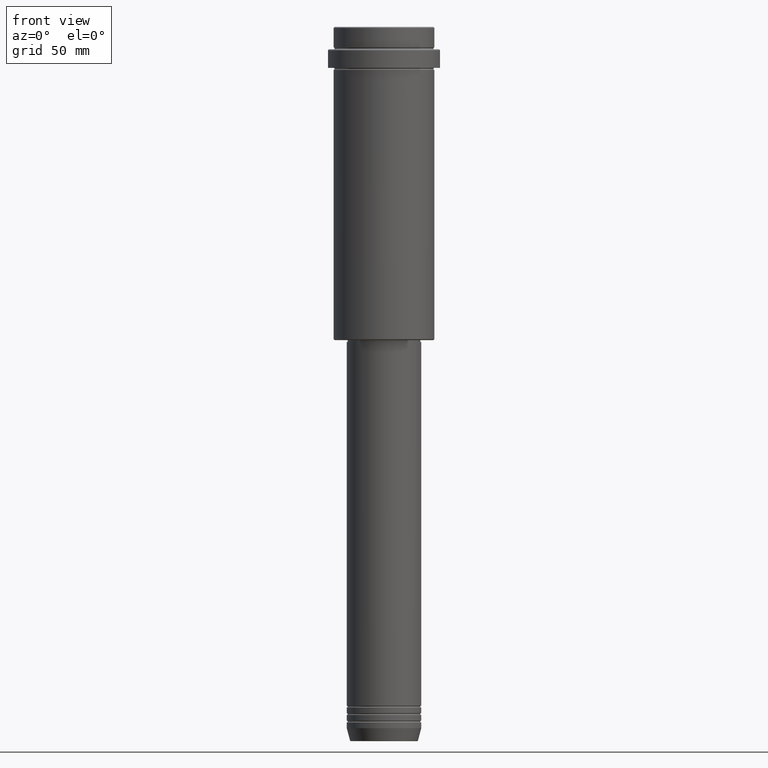
[diagram: clean part render]
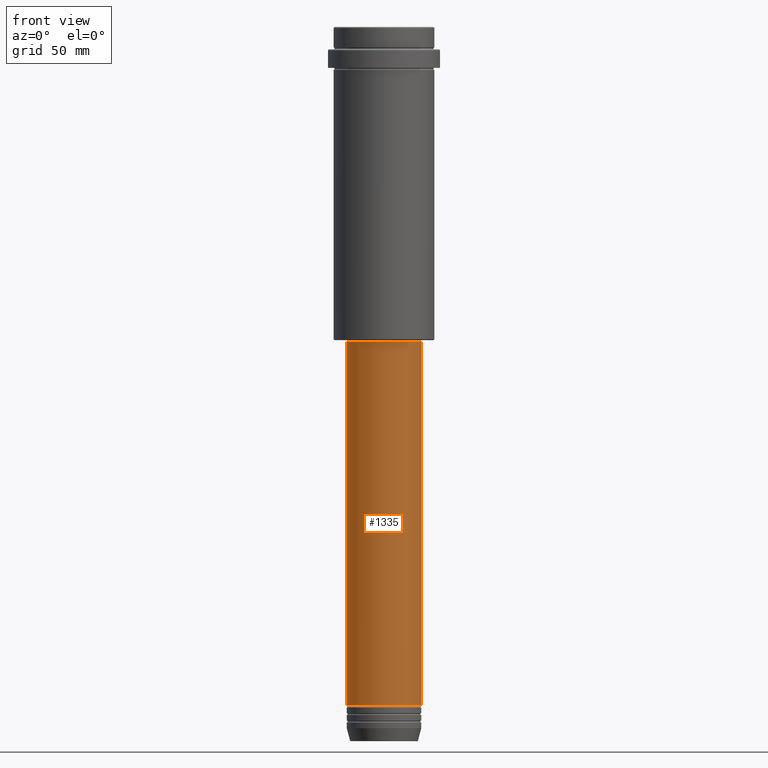
[diagram: same view with one face highlighted and labeled with its STEP entity id]
A machine part, front view. The second image highlights one B-rep face of the part: STEP entity #1335.
In plain terms, the highlighted cylindrical surface (partial cylindrical patch) has radius 20 mm, axis along (-0, -0, 1).
Its self-contained STEP definition (entity closure, byte-faithful):
#45 = EDGE_CURVE ( 'NONE', #1310, #1345, #1164, .T. ) ;
#114 = FACE_OUTER_BOUND ( 'NONE', #933, .T. ) ;
#122 = VERTEX_POINT ( 'NONE', #929 ) ;
#158 = DIRECTION ( 'NONE',  ( -0.000000000000000000, -0.000000000000000000, 1.000000000000000000 ) ) ;
#163 = CARTESIAN_POINT ( 'NONE',  ( -20.00000000000000000, 2.449293598294706513E-15, -363.9999999999998863 ) ) ;
#182 = VECTOR ( 'NONE', #158, 1000.000000000000000 ) ;
#193 = LINE ( 'NONE', #1197, #1251 ) ;
#243 = CARTESIAN_POINT ( 'NONE',  ( 19.99999999999999645, 0.000000000000000000, 0.000000000000000000 ) ) ;
#246 = CIRCLE ( 'NONE', #1167, 20.00000000000000000 ) ;
#314 = CARTESIAN_POINT ( 'NONE',  ( -19.99999999999999645, 2.449293598294706119E-15, -169.0000000000000853 ) ) ;
#372 = DIRECTION ( 'NONE',  ( 1.000000000000000000, 0.000000000000000000, 0.000000000000000000 ) ) ;
#414 = AXIS2_PLACEMENT_3D ( 'NONE', #622, #1343, #372 ) ;
#475 = EDGE_CURVE ( 'NONE', #1171, #1310, #193, .T. ) ;
#560 = ORIENTED_EDGE ( 'NONE', *, *, #1013, .T. ) ;
#622 = CARTESIAN_POINT ( 'NONE',  ( 0.000000000000000000, 0.000000000000000000, -169.0000000000000853 ) ) ;
#648 = EDGE_CURVE ( 'NONE', #1171, #122, #246, .T. ) ;
#673 = ORIENTED_EDGE ( 'NONE', *, *, #648, .T. ) ;
#680 = ORIENTED_EDGE ( 'NONE', *, *, #475, .F. ) ;
#771 = CARTESIAN_POINT ( 'NONE',  ( 0.000000000000000000, 0.000000000000000000, -363.9999999999998863 ) ) ;
#814 = ORIENTED_EDGE ( 'NONE', *, *, #45, .F. ) ;
#929 = CARTESIAN_POINT ( 'NONE',  ( 20.00000000000000000, 0.000000000000000000, -363.9999999999998863 ) ) ;
#933 = EDGE_LOOP ( 'NONE', ( #680, #673, #560, #814 ) ) ;
#983 = CARTESIAN_POINT ( 'NONE',  ( 19.99999999999999645, 0.000000000000000000, -169.0000000000000853 ) ) ;
#990 = CARTESIAN_POINT ( 'NONE',  ( 0.000000000000000000, 0.000000000000000000, 0.000000000000000000 ) ) ;
#996 = DIRECTION ( 'NONE',  ( 1.000000000000000000, 0.000000000000000000, 0.000000000000000000 ) ) ;
#1013 = EDGE_CURVE ( 'NONE', #122, #1345, #1205, .T. ) ;
#1030 = AXIS2_PLACEMENT_3D ( 'NONE', #990, #1191, #1213 ) ;
#1035 = DIRECTION ( 'NONE',  ( -0.000000000000000000, -0.000000000000000000, 1.000000000000000000 ) ) ;
#1164 = CIRCLE ( 'NONE', #414, 19.99999999999999645 ) ;
#1167 = AXIS2_PLACEMENT_3D ( 'NONE', #771, #1035, #996 ) ;
#1171 = VERTEX_POINT ( 'NONE', #163 ) ;
#1191 = DIRECTION ( 'NONE',  ( -0.000000000000000000, -0.000000000000000000, 1.000000000000000000 ) ) ;
#1197 = CARTESIAN_POINT ( 'NONE',  ( -19.99999999999999645, 2.449293598294706119E-15, 0.000000000000000000 ) ) ;
#1202 = DIRECTION ( 'NONE',  ( -0.000000000000000000, -0.000000000000000000, 1.000000000000000000 ) ) ;
#1205 = LINE ( 'NONE', #243, #182 ) ;
#1213 = DIRECTION ( 'NONE',  ( 1.000000000000000000, 0.000000000000000000, 0.000000000000000000 ) ) ;
#1251 = VECTOR ( 'NONE', #1202, 1000.000000000000000 ) ;
#1302 = CYLINDRICAL_SURFACE ( 'NONE', #1030, 19.99999999999999645 ) ;
#1310 = VERTEX_POINT ( 'NONE', #314 ) ;
#1335 = ADVANCED_FACE ( 'NONE', ( #114 ), #1302, .T. ) ;
#1343 = DIRECTION ( 'NONE',  ( -0.000000000000000000, -0.000000000000000000, 1.000000000000000000 ) ) ;
#1345 = VERTEX_POINT ( 'NONE', #983 ) ;